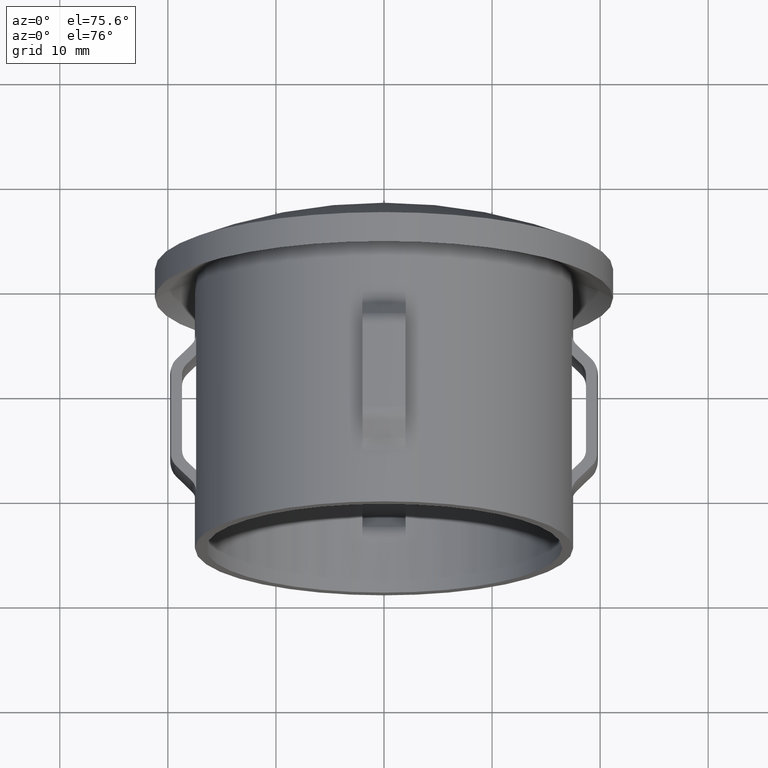
[diagram: clean part render]
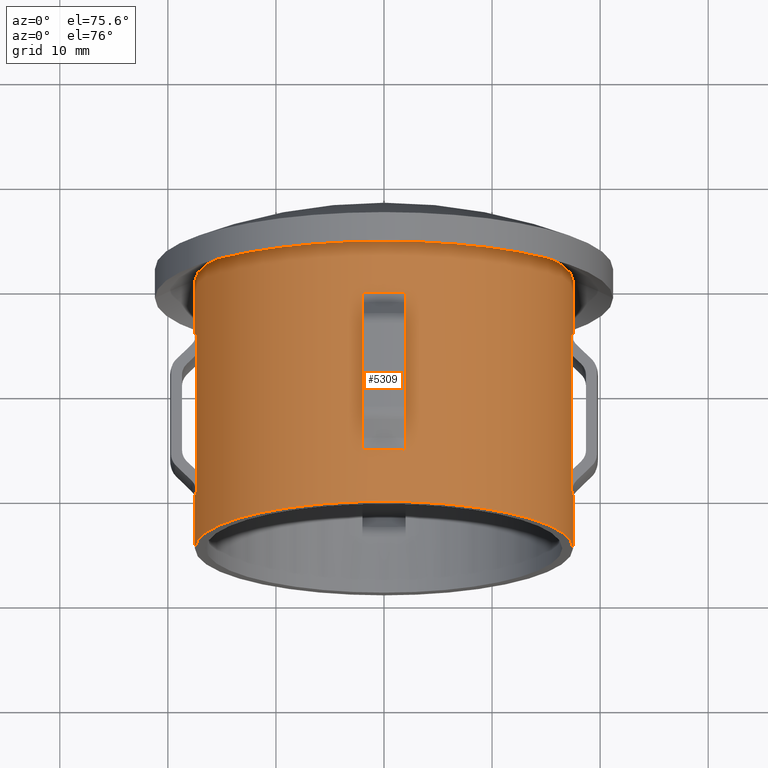
[diagram: same view with one face highlighted and labeled with its STEP entity id]
A machine part, auxiliary view. The second image highlights one B-rep face of the part: STEP entity #5309.
In plain terms, the highlighted cylindrical surface (partial cylindrical patch) has radius 17.5 mm, axis along (-0, -1, -0).
Its self-contained STEP definition (entity closure, byte-faithful):
#92 = CARTESIAN_POINT ( 'NONE',  ( -17.38533865071388000, 6.950252531694295600, 1.999999999999994900 ) ) ;
#104 = DIRECTION ( 'NONE',  ( 1.000000000000000000, -2.924248145218034500E-015, 0.0000000000000000000 ) ) ;
#334 = CARTESIAN_POINT ( 'NONE',  ( -1.999999999999997800, 20.00000000000000000, 17.38533865071380500 ) ) ;
#417 = VECTOR ( 'NONE', #9213, 1000.000000000000000 ) ;
#521 = EDGE_CURVE ( 'NONE', #2857, #12632, #8651, .T. ) ;
#618 = CIRCLE ( 'NONE', #13517, 17.50000000000001800 ) ;
#752 = CARTESIAN_POINT ( 'NONE',  ( -17.50000000000014200, 4.914718625761526700, 2.143131898507881300E-015 ) ) ;
#875 = CARTESIAN_POINT ( 'NONE',  ( -17.38533865071388000, 20.00000000000000000, 1.999999999999994900 ) ) ;
#918 = LINE ( 'NONE', #9015, #12257 ) ;
#1006 = DIRECTION ( 'NONE',  ( -2.449293598294745400E-017, -1.000000000000000000, 0.0000000000000000000 ) ) ;
#1038 = CARTESIAN_POINT ( 'NONE',  ( 17.38533865071371300, 6.950252531694277800, 1.999999999999994900 ) ) ;
#1596 = ORIENTED_EDGE ( 'NONE', *, *, #5516, .T. ) ;
#1607 = LINE ( 'NONE', #2008, #6600 ) ;
#1680 = DIRECTION ( 'NONE',  ( -2.904862207577519400E-015, -1.000000000000000000, -0.0000000000000000000 ) ) ;
#1883 = VERTEX_POINT ( 'NONE', #8430 ) ;
#2002 = VECTOR ( 'NONE', #10179, 1000.000000000000000 ) ;
#2007 = CIRCLE ( 'NONE', #9456, 17.50000000000007100 ) ;
#2008 = CARTESIAN_POINT ( 'NONE',  ( -1.999999999999997800, 20.00000000000000000, 17.38533865071380500 ) ) ;
#2048 = DIRECTION ( 'NONE',  ( 1.000000000000000000, -2.924248145218034500E-015, 0.0000000000000000000 ) ) ;
#2105 = CARTESIAN_POINT ( 'NONE',  ( 17.38533865071371300, 20.00000000000000000, 1.999999999999994900 ) ) ;
#2286 = LINE ( 'NONE', #12194, #5886 ) ;
#2467 = EDGE_CURVE ( 'NONE', #7210, #3448, #6125, .T. ) ;
#2483 = VERTEX_POINT ( 'NONE', #4096 ) ;
#2528 = ORIENTED_EDGE ( 'NONE', *, *, #11894, .T. ) ;
#2554 = DIRECTION ( 'NONE',  ( -2.904862207577519400E-015, -1.000000000000000000, -0.0000000000000000000 ) ) ;
#2721 = CARTESIAN_POINT ( 'NONE',  ( -1.999999999999997800, 20.00000000000000000, 17.38533865071380500 ) ) ;
#2849 = AXIS2_PLACEMENT_3D ( 'NONE', #13802, #5197, #12883 ) ;
#2857 = VERTEX_POINT ( 'NONE', #13645 ) ;
#2902 = CARTESIAN_POINT ( 'NONE',  ( -2.585327364743976200E-014, 20.00000000000005300, 0.0000000000000000000 ) ) ;
#2919 = VERTEX_POINT ( 'NONE', #752 ) ;
#3011 = VERTEX_POINT ( 'NONE', #14271 ) ;
#3025 = CARTESIAN_POINT ( 'NONE',  ( 17.50000000000000000, 1.206615646697376900E-015, 0.0000000000000000000 ) ) ;
#3038 = VERTEX_POINT ( 'NONE', #1038 ) ;
#3042 = DIRECTION ( 'NONE',  ( 1.000000000000000000, -2.973811673103095000E-015, 0.0000000000000000000 ) ) ;
#3047 = CARTESIAN_POINT ( 'NONE',  ( -8.395051779899014400E-014, 5.204170427930421300E-014, 0.0000000000000000000 ) ) ;
#3089 = DIRECTION ( 'NONE',  ( -2.904862207577519400E-015, -1.000000000000000000, -0.0000000000000000000 ) ) ;
#3128 = DIRECTION ( 'NONE',  ( 1.000000000000000000, -2.973811673103097400E-015, 0.0000000000000000000 ) ) ;
#3257 = EDGE_LOOP ( 'NONE', ( #7190, #12912, #8957, #11592, #2528, #13546, #1596, #4741, #6182, #10319, #6103, #7317, #13573, #7012, #8316, #5649 ) ) ;
#3448 = VERTEX_POINT ( 'NONE', #7069 ) ;
#3587 = ORIENTED_EDGE ( 'NONE', *, *, #12855, .F. ) ;
#3675 = LINE ( 'NONE', #2105, #11913 ) ;
#3688 = CARTESIAN_POINT ( 'NONE',  ( -17.38533865071388000, 20.00000000000000000, 1.999999999999994900 ) ) ;
#3818 = EDGE_CURVE ( 'NONE', #3038, #2483, #7871, .T. ) ;
#3851 = CARTESIAN_POINT ( 'NONE',  ( -17.38533865071388000, 4.914718625761423700, 1.999999999999994900 ) ) ;
#3960 = CARTESIAN_POINT ( 'NONE',  ( -1.999999999999997800, 17.96446609406721300, 17.38533865071380500 ) ) ;
#4096 = CARTESIAN_POINT ( 'NONE',  ( 17.38533865071371300, 4.914718625761423700, 1.999999999999994900 ) ) ;
#4111 = EDGE_CURVE ( 'NONE', #2919, #1883, #2286, .T. ) ;
#4114 = CARTESIAN_POINT ( 'NONE',  ( 17.38533865071371300, 20.00000000000000000, 1.999999999999994900 ) ) ;
#4162 = DIRECTION ( 'NONE',  ( 1.000000000000000000, -2.904862207577519400E-015, 0.0000000000000000000 ) ) ;
#4166 = LINE ( 'NONE', #334, #10205 ) ;
#4176 = VECTOR ( 'NONE', #11105, 1000.000000000000000 ) ;
#4213 = DIRECTION ( 'NONE',  ( -2.449293598294745400E-017, -1.000000000000000000, 0.0000000000000000000 ) ) ;
#4289 = EDGE_CURVE ( 'NONE', #11564, #3011, #5203, .T. ) ;
#4414 = AXIS2_PLACEMENT_3D ( 'NONE', #6044, #1680, #13572 ) ;
#4562 = ORIENTED_EDGE ( 'NONE', *, *, #5949, .T. ) ;
#4640 = ORIENTED_EDGE ( 'NONE', *, *, #11711, .T. ) ;
#4711 = LINE ( 'NONE', #3688, #417 ) ;
#4720 = CARTESIAN_POINT ( 'NONE',  ( 17.50000000000007800, 28.89999999999994200, 0.0000000000000000000 ) ) ;
#4741 = ORIENTED_EDGE ( 'NONE', *, *, #4111, .T. ) ;
#4750 = EDGE_CURVE ( 'NONE', #3011, #7993, #4166, .T. ) ;
#4901 = VERTEX_POINT ( 'NONE', #3851 ) ;
#4999 = ORIENTED_EDGE ( 'NONE', *, *, #4289, .F. ) ;
#5197 = DIRECTION ( 'NONE',  ( -2.904862207577519400E-015, -1.000000000000000000, -0.0000000000000000000 ) ) ;
#5203 = CIRCLE ( 'NONE', #13913, 17.50000000000001800 ) ;
#5309 = ADVANCED_FACE ( 'NONE', ( #6919, #5444 ), #8716, .T. ) ;
#5346 = CARTESIAN_POINT ( 'NONE',  ( 2.000000000000001300, 6.950252531694218300, 17.38533865071378400 ) ) ;
#5362 = CARTESIAN_POINT ( 'NONE',  ( -1.999999999999998200, 6.950252531694277800, 17.38533865071380500 ) ) ;
#5400 = VECTOR ( 'NONE', #6001, 1000.000000000000000 ) ;
#5444 = FACE_OUTER_BOUND ( 'NONE', #3257, .T. ) ;
#5475 = EDGE_CURVE ( 'NONE', #10465, #4901, #11622, .T. ) ;
#5478 = DIRECTION ( 'NONE',  ( -2.449293598294745400E-017, -1.000000000000000000, -0.0000000000000000000 ) ) ;
#5516 = EDGE_CURVE ( 'NONE', #4901, #2919, #13870, .T. ) ;
#5555 = CARTESIAN_POINT ( 'NONE',  ( -17.38533865071388000, 20.00000000000000000, 1.999999999999994900 ) ) ;
#5580 = LINE ( 'NONE', #875, #11598 ) ;
#5585 = EDGE_CURVE ( 'NONE', #14031, #12289, #618, .T. ) ;
#5615 = DIRECTION ( 'NONE',  ( -2.904862207577519400E-015, -1.000000000000000000, -0.0000000000000000000 ) ) ;
#5649 = ORIENTED_EDGE ( 'NONE', *, *, #12008, .F. ) ;
#5712 = LINE ( 'NONE', #6567, #14152 ) ;
#5722 = DIRECTION ( 'NONE',  ( -2.904862207577519400E-015, -1.000000000000000000, -0.0000000000000000000 ) ) ;
#5810 = CARTESIAN_POINT ( 'NONE',  ( -2.585327364743976200E-014, 20.00000000000005300, 0.0000000000000000000 ) ) ;
#5886 = VECTOR ( 'NONE', #5615, 1000.000000000000000 ) ;
#5949 = EDGE_CURVE ( 'NONE', #6314, #7507, #2007, .T. ) ;
#6001 = DIRECTION ( 'NONE',  ( -2.904862207577519400E-015, -1.000000000000000000, -0.0000000000000000000 ) ) ;
#6032 = CARTESIAN_POINT ( 'NONE',  ( 2.000000000000001800, 17.96446609406726900, 17.38533865071378400 ) ) ;
#6044 = CARTESIAN_POINT ( 'NONE',  ( -2.585327364743976200E-014, 20.00000000000005300, 0.0000000000000000000 ) ) ;
#6103 = ORIENTED_EDGE ( 'NONE', *, *, #11521, .T. ) ;
#6120 = ORIENTED_EDGE ( 'NONE', *, *, #4750, .F. ) ;
#6125 = CIRCLE ( 'NONE', #4414, 17.50000000000001800 ) ;
#6182 = ORIENTED_EDGE ( 'NONE', *, *, #10350, .F. ) ;
#6225 = LINE ( 'NONE', #7228, #8819 ) ;
#6314 = VERTEX_POINT ( 'NONE', #8295 ) ;
#6402 = VECTOR ( 'NONE', #11383, 1000.000000000000000 ) ;
#6567 = CARTESIAN_POINT ( 'NONE',  ( 2.000000000000001800, 20.00000000000000000, 17.38533865071378400 ) ) ;
#6579 = VECTOR ( 'NONE', #10795, 1000.000000000000000 ) ;
#6600 = VECTOR ( 'NONE', #4213, 1000.000000000000000 ) ;
#6684 = DIRECTION ( 'NONE',  ( -2.449293598294745400E-017, -1.000000000000000000, -0.0000000000000000000 ) ) ;
#6876 = VERTEX_POINT ( 'NONE', #9807 ) ;
#6898 = DIRECTION ( 'NONE',  ( -2.449293598294745400E-017, -1.000000000000000000, -0.0000000000000000000 ) ) ;
#6919 = FACE_BOUND ( 'NONE', #12535, .T. ) ;
#7012 = ORIENTED_EDGE ( 'NONE', *, *, #12145, .F. ) ;
#7069 = CARTESIAN_POINT ( 'NONE',  ( -17.50000000000004300, 20.00000000000010300, 2.143131898507875000E-015 ) ) ;
#7190 = ORIENTED_EDGE ( 'NONE', *, *, #8002, .T. ) ;
#7210 = VERTEX_POINT ( 'NONE', #5555 ) ;
#7228 = CARTESIAN_POINT ( 'NONE',  ( 17.50000000000007800, 28.89999999999994200, 0.0000000000000000000 ) ) ;
#7280 = CIRCLE ( 'NONE', #2849, 17.50000000000007100 ) ;
#7317 = ORIENTED_EDGE ( 'NONE', *, *, #3818, .F. ) ;
#7372 = CARTESIAN_POINT ( 'NONE',  ( 2.000000000000001800, 20.00000000000000000, 17.38533865071378400 ) ) ;
#7507 = VERTEX_POINT ( 'NONE', #11195 ) ;
#7843 = DIRECTION ( 'NONE',  ( -2.449293598294745400E-017, -1.000000000000000000, -0.0000000000000000000 ) ) ;
#7871 = LINE ( 'NONE', #10998, #2002 ) ;
#7993 = VERTEX_POINT ( 'NONE', #3960 ) ;
#8002 = EDGE_CURVE ( 'NONE', #12904, #6876, #13151, .T. ) ;
#8197 = ORIENTED_EDGE ( 'NONE', *, *, #13250, .T. ) ;
#8274 = AXIS2_PLACEMENT_3D ( 'NONE', #11347, #2554, #11389 ) ;
#8295 = CARTESIAN_POINT ( 'NONE',  ( 2.000000000000001300, 4.914718625761423700, 17.38533865071378400 ) ) ;
#8313 = LINE ( 'NONE', #4114, #6579 ) ;
#8316 = ORIENTED_EDGE ( 'NONE', *, *, #5585, .F. ) ;
#8361 = EDGE_CURVE ( 'NONE', #6876, #3448, #10217, .T. ) ;
#8430 = CARTESIAN_POINT ( 'NONE',  ( -17.50000000000016700, 1.028767929119110500E-013, 2.143131898507882800E-015 ) ) ;
#8514 = EDGE_CURVE ( 'NONE', #10904, #3038, #3675, .T. ) ;
#8651 = LINE ( 'NONE', #4720, #12431 ) ;
#8657 = CIRCLE ( 'NONE', #11936, 17.50000000000008500 ) ;
#8716 = CYLINDRICAL_SURFACE ( 'NONE', #8274, 17.50000000000007800 ) ;
#8819 = VECTOR ( 'NONE', #9396, 1000.000000000000000 ) ;
#8957 = ORIENTED_EDGE ( 'NONE', *, *, #2467, .F. ) ;
#9015 = CARTESIAN_POINT ( 'NONE',  ( 2.000000000000001800, 20.00000000000000000, 17.38533865071378400 ) ) ;
#9082 = ORIENTED_EDGE ( 'NONE', *, *, #12313, .T. ) ;
#9213 = DIRECTION ( 'NONE',  ( -2.449293598294745400E-017, -1.000000000000000000, 0.0000000000000000000 ) ) ;
#9270 = AXIS2_PLACEMENT_3D ( 'NONE', #13116, #9953, #104 ) ;
#9340 = EDGE_CURVE ( 'NONE', #7210, #11279, #5580, .T. ) ;
#9391 = VECTOR ( 'NONE', #5478, 1000.000000000000000 ) ;
#9396 = DIRECTION ( 'NONE',  ( -2.904862207577519400E-015, -1.000000000000000000, -0.0000000000000000000 ) ) ;
#9436 = DIRECTION ( 'NONE',  ( -2.904862207577519400E-015, -1.000000000000000000, -0.0000000000000000000 ) ) ;
#9456 = AXIS2_PLACEMENT_3D ( 'NONE', #12956, #3089, #2048 ) ;
#9807 = CARTESIAN_POINT ( 'NONE',  ( -17.50000000000001400, 25.55880433163933700, 2.369691556350132100E-015 ) ) ;
#9953 = DIRECTION ( 'NONE',  ( -2.904862207577519400E-015, -1.000000000000000000, -0.0000000000000000000 ) ) ;
#10061 = CARTESIAN_POINT ( 'NONE',  ( 17.38533865071371300, 17.96446609406721300, 1.999999999999994900 ) ) ;
#10179 = DIRECTION ( 'NONE',  ( -2.449293598294745400E-017, -1.000000000000000000, -0.0000000000000000000 ) ) ;
#10205 = VECTOR ( 'NONE', #12366, 1000.000000000000000 ) ;
#10217 = LINE ( 'NONE', #13575, #5400 ) ;
#10233 = VERTEX_POINT ( 'NONE', #6032 ) ;
#10299 = EDGE_CURVE ( 'NONE', #7993, #13439, #1607, .T. ) ;
#10319 = ORIENTED_EDGE ( 'NONE', *, *, #521, .F. ) ;
#10350 = EDGE_CURVE ( 'NONE', #12632, #1883, #8657, .T. ) ;
#10465 = VERTEX_POINT ( 'NONE', #92 ) ;
#10756 = DIRECTION ( 'NONE',  ( -2.904862207577519400E-015, -1.000000000000000000, -0.0000000000000000000 ) ) ;
#10795 = DIRECTION ( 'NONE',  ( -2.449293598294745400E-017, -1.000000000000000000, -0.0000000000000000000 ) ) ;
#10904 = VERTEX_POINT ( 'NONE', #10061 ) ;
#10953 = CARTESIAN_POINT ( 'NONE',  ( -17.38533865071388000, 17.96446609406726900, 1.999999999999994900 ) ) ;
#10998 = CARTESIAN_POINT ( 'NONE',  ( 17.38533865071371300, 20.00000000000000000, 1.999999999999994900 ) ) ;
#11080 = ORIENTED_EDGE ( 'NONE', *, *, #10299, .F. ) ;
#11105 = DIRECTION ( 'NONE',  ( -2.449293598294745400E-017, -1.000000000000000000, 0.0000000000000000000 ) ) ;
#11195 = CARTESIAN_POINT ( 'NONE',  ( -1.999999999999998200, 4.914718625761423700, 17.38533865071380500 ) ) ;
#11279 = VERTEX_POINT ( 'NONE', #10953 ) ;
#11347 = CARTESIAN_POINT ( 'NONE',  ( 0.0000000000000000000, 28.89999999999999500, 0.0000000000000000000 ) ) ;
#11383 = DIRECTION ( 'NONE',  ( -2.449293598294745400E-017, -1.000000000000000000, -0.0000000000000000000 ) ) ;
#11389 = DIRECTION ( 'NONE',  ( 1.000000000000000000, -2.973811673103084700E-015, 0.0000000000000000000 ) ) ;
#11521 = EDGE_CURVE ( 'NONE', #2857, #2483, #7280, .T. ) ;
#11564 = VERTEX_POINT ( 'NONE', #7372 ) ;
#11592 = ORIENTED_EDGE ( 'NONE', *, *, #9340, .T. ) ;
#11598 = VECTOR ( 'NONE', #6684, 1000.000000000000000 ) ;
#11622 = LINE ( 'NONE', #11956, #9391 ) ;
#11711 = EDGE_CURVE ( 'NONE', #10233, #12603, #13301, .T. ) ;
#11863 = CARTESIAN_POINT ( 'NONE',  ( 2.000000000000001800, 20.00000000000000000, 17.38533865071378400 ) ) ;
#11885 = LINE ( 'NONE', #2721, #6402 ) ;
#11894 = EDGE_CURVE ( 'NONE', #11279, #10465, #4711, .T. ) ;
#11904 = AXIS2_PLACEMENT_3D ( 'NONE', #12737, #9436, #3128 ) ;
#11913 = VECTOR ( 'NONE', #1006, 1000.000000000000000 ) ;
#11936 = AXIS2_PLACEMENT_3D ( 'NONE', #3047, #10756, #4162 ) ;
#11947 = CARTESIAN_POINT ( 'NONE',  ( 17.49999999999999600, 20.00000000000000000, 0.0000000000000000000 ) ) ;
#11956 = CARTESIAN_POINT ( 'NONE',  ( -17.38533865071388000, 20.00000000000000000, 1.999999999999994900 ) ) ;
#12008 = EDGE_CURVE ( 'NONE', #12904, #14031, #6225, .T. ) ;
#12145 = EDGE_CURVE ( 'NONE', #12289, #10904, #8313, .T. ) ;
#12194 = CARTESIAN_POINT ( 'NONE',  ( -17.50000000000007800, 28.90000000000004800, 2.143131898507877700E-015 ) ) ;
#12242 = DIRECTION ( 'NONE',  ( -2.904862207577519400E-015, -1.000000000000000000, -0.0000000000000000000 ) ) ;
#12257 = VECTOR ( 'NONE', #6898, 1000.000000000000000 ) ;
#12289 = VERTEX_POINT ( 'NONE', #13480 ) ;
#12313 = EDGE_CURVE ( 'NONE', #11564, #10233, #918, .T. ) ;
#12366 = DIRECTION ( 'NONE',  ( -2.449293598294745400E-017, -1.000000000000000000, -0.0000000000000000000 ) ) ;
#12431 = VECTOR ( 'NONE', #5722, 1000.000000000000000 ) ;
#12535 = EDGE_LOOP ( 'NONE', ( #3587, #11080, #6120, #4999, #9082, #4640, #8197, #4562 ) ) ;
#12603 = VERTEX_POINT ( 'NONE', #5346 ) ;
#12632 = VERTEX_POINT ( 'NONE', #3025 ) ;
#12737 = CARTESIAN_POINT ( 'NONE',  ( -9.705713025142736400E-015, 25.55880433163928700, 0.0000000000000000000 ) ) ;
#12855 = EDGE_CURVE ( 'NONE', #13439, #7507, #11885, .T. ) ;
#12883 = DIRECTION ( 'NONE',  ( 1.000000000000000000, -2.924248145218034500E-015, 0.0000000000000000000 ) ) ;
#12904 = VERTEX_POINT ( 'NONE', #13603 ) ;
#12912 = ORIENTED_EDGE ( 'NONE', *, *, #8361, .T. ) ;
#12951 = DIRECTION ( 'NONE',  ( -2.904862207577519400E-015, -1.000000000000000000, -0.0000000000000000000 ) ) ;
#12956 = CARTESIAN_POINT ( 'NONE',  ( -6.967393740213846900E-014, 4.914718625761476100, 0.0000000000000000000 ) ) ;
#13116 = CARTESIAN_POINT ( 'NONE',  ( -6.967393740213846900E-014, 4.914718625761476100, 0.0000000000000000000 ) ) ;
#13151 = CIRCLE ( 'NONE', #11904, 17.50000000000000400 ) ;
#13250 = EDGE_CURVE ( 'NONE', #12603, #6314, #5712, .T. ) ;
#13301 = LINE ( 'NONE', #11863, #4176 ) ;
#13439 = VERTEX_POINT ( 'NONE', #5362 ) ;
#13453 = DIRECTION ( 'NONE',  ( 1.000000000000000000, -2.973811673103095000E-015, 0.0000000000000000000 ) ) ;
#13480 = CARTESIAN_POINT ( 'NONE',  ( 17.38533865071371300, 20.00000000000000000, 1.999999999999994900 ) ) ;
#13517 = AXIS2_PLACEMENT_3D ( 'NONE', #5810, #12242, #13453 ) ;
#13546 = ORIENTED_EDGE ( 'NONE', *, *, #5475, .T. ) ;
#13572 = DIRECTION ( 'NONE',  ( 1.000000000000000000, -2.973811673103095000E-015, 0.0000000000000000000 ) ) ;
#13573 = ORIENTED_EDGE ( 'NONE', *, *, #8514, .F. ) ;
#13575 = CARTESIAN_POINT ( 'NONE',  ( -17.50000000000007800, 28.90000000000004800, 2.143131898507877700E-015 ) ) ;
#13603 = CARTESIAN_POINT ( 'NONE',  ( 17.49999999999999600, 25.55880433163923400, 0.0000000000000000000 ) ) ;
#13645 = CARTESIAN_POINT ( 'NONE',  ( 17.50000000000000000, 4.914718625761424600, 0.0000000000000000000 ) ) ;
#13802 = CARTESIAN_POINT ( 'NONE',  ( -6.967393740213846900E-014, 4.914718625761476100, 0.0000000000000000000 ) ) ;
#13870 = CIRCLE ( 'NONE', #9270, 17.50000000000007100 ) ;
#13913 = AXIS2_PLACEMENT_3D ( 'NONE', #2902, #12951, #3042 ) ;
#14031 = VERTEX_POINT ( 'NONE', #11947 ) ;
#14152 = VECTOR ( 'NONE', #7843, 1000.000000000000000 ) ;
#14271 = CARTESIAN_POINT ( 'NONE',  ( -1.999999999999998700, 20.00000000000006000, 17.38533865071373400 ) ) ;